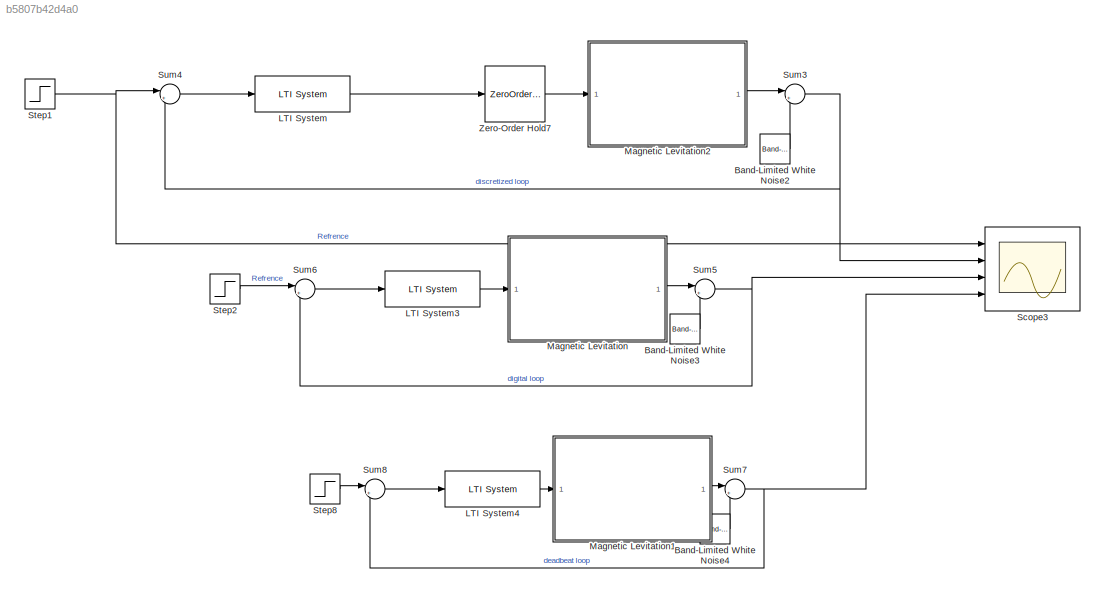
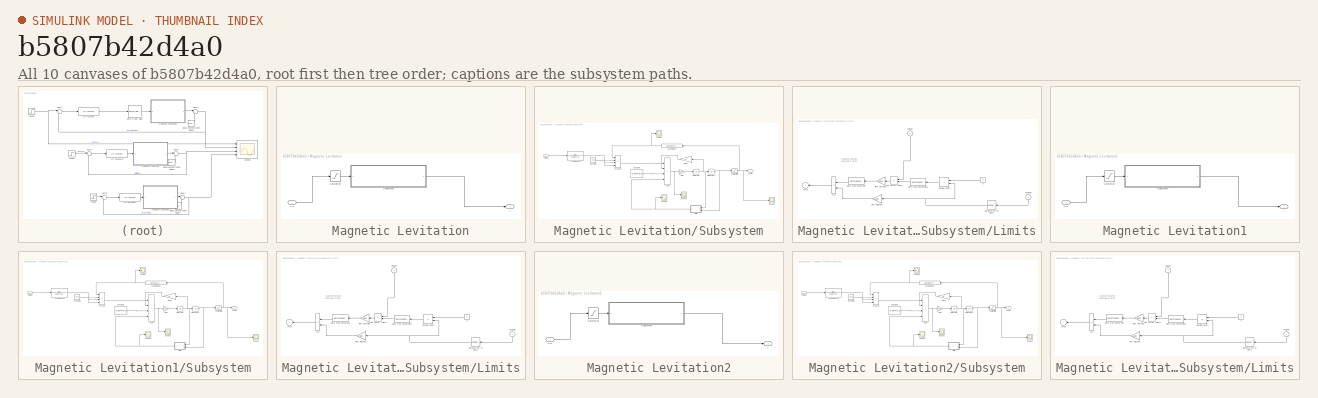
[diagram: thumbnail index - all 10 canvases of the model, root first then tree order]
MODEL slx_b5807b42d4a0
KIND model
CONFIG AbsTol = auto
CONFIG EnableMultiTasking = off
CONFIG FixedStep = auto
CONFIG MaxStep = auto
CONFIG MinStep = auto
CONFIG RelTol = 1e-3
CONFIG SampleTimeConstraint = Unconstrained
CONFIG SolverName = VariableStepAuto
CONFIG StartTime = 0.0
CONFIG StopTime = 10
BLOCK [Reference] Band-Limited White Noise2  REF=simulink/Sources/Band-Limited
White Noise
  Ports = [0, 1]
  SourceBlock = simulink/Sources/Band-Limited\nWhite Noise
  SourceProductBaseCode = SL
  SourceType = Band-Limited White Noise.
BLOCK [Reference] Band-Limited White Noise3  REF=simulink/Sources/Band-Limited
White Noise
  Ports = [0, 1]
  SourceBlock = simulink/Sources/Band-Limited\nWhite Noise
  SourceProductBaseCode = SL
  SourceType = Band-Limited White Noise.
BLOCK [Reference] Band-Limited White Noise4  REF=simulink/Sources/Band-Limited
White Noise
  Ports = [0, 1]
  SourceBlock = simulink/Sources/Band-Limited\nWhite Noise
  SourceProductBaseCode = SL
  SourceType = Band-Limited White Noise.
BLOCK [Reference] LTI System  REF=cstblocks/LTI System
  Ports = [1, 1]
  SourceBlock = cstblocks/LTI System
  SourceProductBaseCode = CT
  SourceType = LTI Block
BLOCK [Reference] LTI System3  REF=cstblocks/LTI System
  Ports = [1, 1]
  SourceBlock = cstblocks/LTI System
  SourceProductBaseCode = CT
  SourceType = LTI Block
BLOCK [Reference] LTI System4  REF=cstblocks/LTI System
  Ports = [1, 1]
  SourceBlock = cstblocks/LTI System
  SourceProductBaseCode = CT
  SourceType = LTI Block
BLOCK [SubSystem] Magnetic Levitation
  Permissions = NoReadOrWrite
  Ports = [1, 1]
  RequestExecContextInheritance = off
BLOCK [Saturate] Magnetic Levitation/Saturation
  LowerLimit = -6
  UpperLimit = 10
  ZeroCross = off
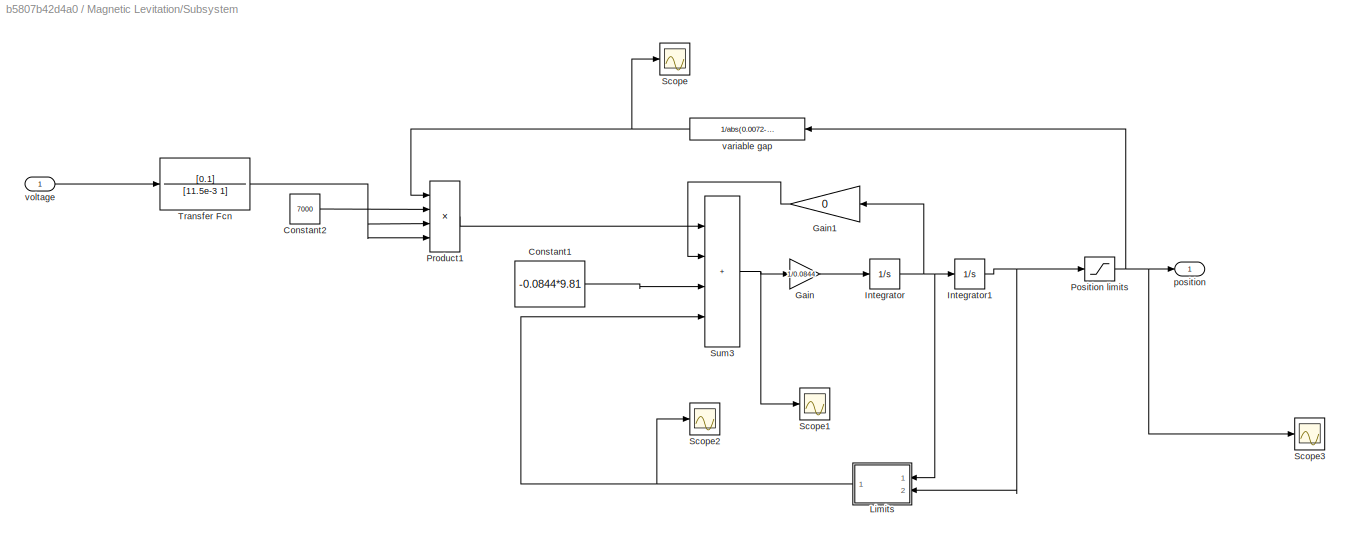
BLOCK [SubSystem] Magnetic Levitation/Subsystem
  Ports = [1, 1]
  RequestExecContextInheritance = off
BLOCK [Constant] Magnetic Levitation/Subsystem/Constant1
  Value = -0.0844*9.81
BLOCK [Constant] Magnetic Levitation/Subsystem/Constant2
  Value = 7000
BLOCK [Gain] Magnetic Levitation/Subsystem/Gain
  Gain = 1/0.0844
BLOCK [Gain] Magnetic Levitation/Subsystem/Gain1
  Gain = 0
  NameLocation = top
BLOCK [Integrator] Magnetic Levitation/Subsystem/Integrator
  Ports = [1, 1]
BLOCK [Integrator] Magnetic Levitation/Subsystem/Integrator1
  LimitOutput = on
  LowerSaturationLimit = 0
  Ports = [1, 1]
  UpperSaturationLimit = 0.005
BLOCK [SubSystem] Magnetic Levitation/Subsystem/Limits
  Ports = [2, 1]
  RequestExecContextInheritance = off
  ShowPortLabels = none
BLOCK [Constant] Magnetic Levitation/Subsystem/Limits/0
  Value = 0
BLOCK [DataTypeConversion] Magnetic Levitation/Subsystem/Limits/Data Type Conversion
  NameLocation = top
  OutDataTypeStr = double
  RndMeth = Floor
  SaturateOnIntegerOverflow = off
BLOCK [DataTypeConversion] Magnetic Levitation/Subsystem/Limits/Data Type Conversion1
  NameLocation = top
  OutDataTypeStr = double
  RndMeth = Floor
  SaturateOnIntegerOverflow = off
BLOCK [DeadZone] Magnetic Levitation/Subsystem/Limits/Distance out of limits
  LowerValue = 0.0002
  UpperValue = 5e-3
  ZeroCross = off
BLOCK [Sum] Magnetic Levitation/Subsystem/Limits/Fc1
  IconShape = rectangular
  InputSameDT = on
  Inputs = --
  OutDataTypeStr = Inherit: Same as first input
  Ports = [2, 1]
  SaturateOnIntegerOverflow = on
BLOCK [Product] Magnetic Levitation/Subsystem/Limits/Just on//off switch 
  InputSameDT = on
  OutDataTypeStr = Inherit: Same as first input
  Ports = [2, 1]
  SaturateOnIntegerOverflow = on
BLOCK [RelationalOperator] Magnetic Levitation/Subsystem/Limits/Outside Limits
  Operator = ~=
  Ports = [2, 1]
BLOCK [Outport] Magnetic Levitation/Subsystem/Limits/force
  VectorParamsAs1DForOutWhenUnconnected = off
BLOCK [Gain] Magnetic Levitation/Subsystem/Limits/limit damping
  Gain = 2800
  OutDataTypeStr = Inherit: Same as input
  ParamDataTypeStr = Inherit: Same as input
  SaturateOnIntegerOverflow = on
BLOCK [Gain] Magnetic Levitation/Subsystem/Limits/limit elasticity
  Gain = 500
  OutDataTypeStr = Inherit: Same as input
  ParamDataTypeStr = Inherit: Same as input
  SaturateOnIntegerOverflow = on
BLOCK [Inport] Magnetic Levitation/Subsystem/Limits/position
  NameLocation = right
  Port = 2
BLOCK [Inport] Magnetic Levitation/Subsystem/Limits/velocity
  NameLocation = right
BLOCK [Saturate] Magnetic Levitation/Subsystem/Position limits
  LowerLimit = 0.00001
  UpperLimit = 0.00499
  ZeroCross = off
BLOCK [Product] Magnetic Levitation/Subsystem/Product1
  Inputs = 4
  Ports = [4, 1]
BLOCK [Scope] Magnetic Levitation/Subsystem/Scope
  Floating = off
  NumInputPorts = 1
  Ports = [1]
  ScopeSpecificationString = Simulink.scopes.TimeScopeBlockCfg('CurrentConfiguration', extmgr.ConfigurationSet(extmgr.Configuration('Core','General UI',true),extmgr.Configuration('Core','Source UI',true),extmgr.Configuration('Sources','WiredSimulink',true,'DataLoggingVariableName','ScopeData1'),extmgr.Configuration('Visuals','Time Domain',true,'SerializedDisplays',{struct('MinYLimReal','-40.54054','MaxYLimReal','374.87487','Y...<+1381ch>  <repeated x3 — deduplicated; at blocks: Scope>
BLOCK [Scope] Magnetic Levitation/Subsystem/Scope1
  Floating = off
  NumInputPorts = 1
  Ports = [1]
  ScopeSpecificationString = Simulink.scopes.TimeScopeBlockCfg('CurrentConfiguration', extmgr.ConfigurationSet(extmgr.Configuration('Core','General UI',true),extmgr.Configuration('Core','Source UI',true),extmgr.Configuration('Sources','WiredSimulink',true,'DataLoggingVariableName','ScopeData2'),extmgr.Configuration('Visuals','Time Domain',true,'SerializedDisplays',{struct('MinYLimReal','-21376391083219120442781708779858395089...<+3841ch>  <repeated x3 — deduplicated; at blocks: Scope1>
BLOCK [Scope] Magnetic Levitation/Subsystem/Scope2
  Floating = off
  NumInputPorts = 1
  Ports = [1]
  ScopeSpecificationString = Simulink.scopes.TimeScopeBlockCfg('CurrentConfiguration', extmgr.ConfigurationSet(extmgr.Configuration('Core','General UI',true),extmgr.Configuration('Core','Source UI',true),extmgr.Configuration('Sources','WiredSimulink',true,'DataLoggingVariableName','ScopeData3'),extmgr.Configuration('Visuals','Time Domain',true,'SerializedDisplays',{struct('MinYLimReal','-0.1107','MaxYLimReal','1.19629','YLabe...<+1363ch>  <repeated x3 — deduplicated; at blocks: Scope2>
BLOCK [Scope] Magnetic Levitation/Subsystem/Scope3
  Floating = off
  NumInputPorts = 1
  Ports = [1]
  ScopeSpecificationString = Simulink.scopes.TimeScopeBlockCfg('CurrentConfiguration', extmgr.ConfigurationSet(extmgr.Configuration('Core','General UI',true),extmgr.Configuration('Core','Source UI',true),extmgr.Configuration('Sources','WiredSimulink',true,'DataLoggingVariableName','ScopeData2'),extmgr.Configuration('Visuals','Time Domain',true,'SerializedDisplays',{struct('MinYLimReal','-0.00029','MaxYLimReal','0.00267','YLab...<+1402ch>  <repeated x3 — deduplicated; at blocks: Scope3>
BLOCK [Sum] Magnetic Levitation/Subsystem/Sum3
  IconShape = rectangular
  Inputs = ++++
  Ports = [4, 1]
BLOCK [TransferFcn] Magnetic Levitation/Subsystem/Transfer Fcn
  Denominator = [11.5e-3 1]
  Numerator = [0.1]
BLOCK [Outport] Magnetic Levitation/Subsystem/position 
  VectorParamsAs1DForOutWhenUnconnected = off
BLOCK [Fcn] Magnetic Levitation/Subsystem/variable gap
  Expr = 1/abs(0.0072-u)
BLOCK [Inport] Magnetic Levitation/Subsystem/voltage
BLOCK [Inport] Magnetic Levitation/Vin
BLOCK [Outport] Magnetic Levitation/y
  VectorParamsAs1DForOutWhenUnconnected = off
BLOCK [SubSystem] Magnetic Levitation1
  Permissions = NoReadOrWrite
  Ports = [1, 1]
  RequestExecContextInheritance = off
BLOCK [Saturate] Magnetic Levitation1/Saturation
  LowerLimit = -6
  UpperLimit = 10
  ZeroCross = off
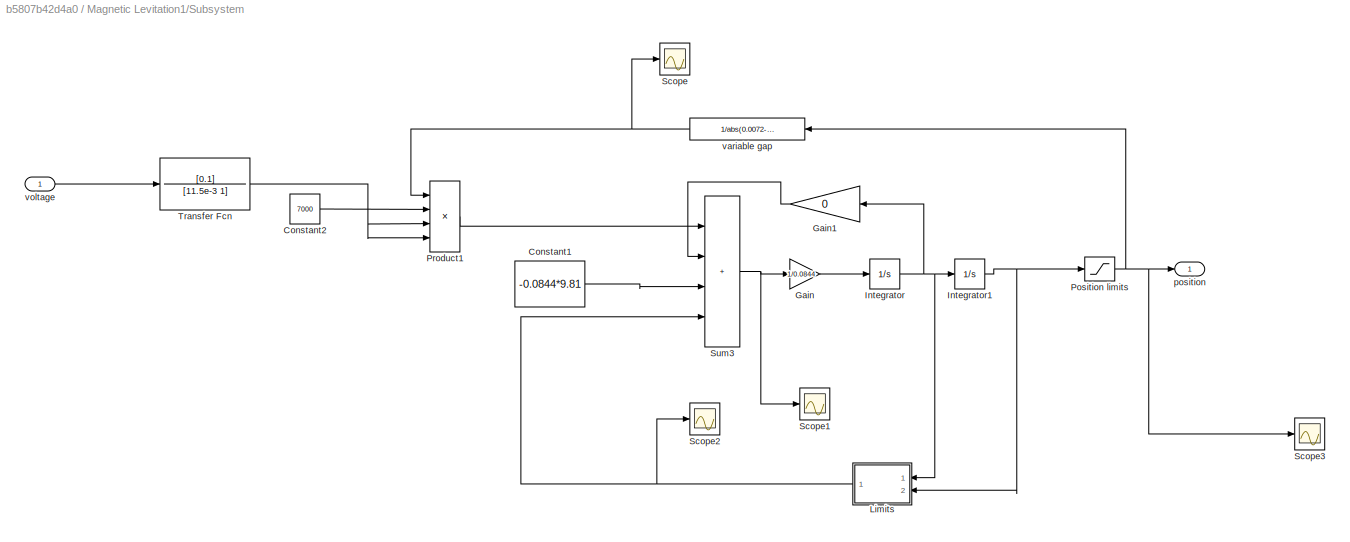
BLOCK [SubSystem] Magnetic Levitation1/Subsystem
  Ports = [1, 1]
  RequestExecContextInheritance = off
BLOCK [Constant] Magnetic Levitation1/Subsystem/Constant1
  Value = -0.0844*9.81
BLOCK [Constant] Magnetic Levitation1/Subsystem/Constant2
  Value = 7000
BLOCK [Gain] Magnetic Levitation1/Subsystem/Gain
  Gain = 1/0.0844
BLOCK [Gain] Magnetic Levitation1/Subsystem/Gain1
  Gain = 0
  NameLocation = top
BLOCK [Integrator] Magnetic Levitation1/Subsystem/Integrator
  Ports = [1, 1]
BLOCK [Integrator] Magnetic Levitation1/Subsystem/Integrator1
  LimitOutput = on
  LowerSaturationLimit = 0
  Ports = [1, 1]
  UpperSaturationLimit = 0.005
BLOCK [SubSystem] Magnetic Levitation1/Subsystem/Limits
  Ports = [2, 1]
  RequestExecContextInheritance = off
  ShowPortLabels = none
BLOCK [Constant] Magnetic Levitation1/Subsystem/Limits/0
  Value = 0
BLOCK [DataTypeConversion] Magnetic Levitation1/Subsystem/Limits/Data Type Conversion
  NameLocation = top
  OutDataTypeStr = double
  RndMeth = Floor
  SaturateOnIntegerOverflow = off
BLOCK [DataTypeConversion] Magnetic Levitation1/Subsystem/Limits/Data Type Conversion1
  NameLocation = top
  OutDataTypeStr = double
  RndMeth = Floor
  SaturateOnIntegerOverflow = off
BLOCK [DeadZone] Magnetic Levitation1/Subsystem/Limits/Distance out of limits
  LowerValue = 0.0002
  UpperValue = 5e-3
  ZeroCross = off
BLOCK [Sum] Magnetic Levitation1/Subsystem/Limits/Fc1
  IconShape = rectangular
  InputSameDT = on
  Inputs = --
  OutDataTypeStr = Inherit: Same as first input
  Ports = [2, 1]
  SaturateOnIntegerOverflow = on
BLOCK [Product] Magnetic Levitation1/Subsystem/Limits/Just on//off switch 
  InputSameDT = on
  OutDataTypeStr = Inherit: Same as first input
  Ports = [2, 1]
  SaturateOnIntegerOverflow = on
BLOCK [RelationalOperator] Magnetic Levitation1/Subsystem/Limits/Outside Limits
  Operator = ~=
  Ports = [2, 1]
BLOCK [Outport] Magnetic Levitation1/Subsystem/Limits/force
  VectorParamsAs1DForOutWhenUnconnected = off
BLOCK [Gain] Magnetic Levitation1/Subsystem/Limits/limit damping
  Gain = 2800
  OutDataTypeStr = Inherit: Same as input
  ParamDataTypeStr = Inherit: Same as input
  SaturateOnIntegerOverflow = on
BLOCK [Gain] Magnetic Levitation1/Subsystem/Limits/limit elasticity
  Gain = 500
  OutDataTypeStr = Inherit: Same as input
  ParamDataTypeStr = Inherit: Same as input
  SaturateOnIntegerOverflow = on
BLOCK [Inport] Magnetic Levitation1/Subsystem/Limits/position
  NameLocation = right
  Port = 2
BLOCK [Inport] Magnetic Levitation1/Subsystem/Limits/velocity
  NameLocation = right
BLOCK [Saturate] Magnetic Levitation1/Subsystem/Position limits
  LowerLimit = 0.00001
  UpperLimit = 0.00499
  ZeroCross = off
BLOCK [Product] Magnetic Levitation1/Subsystem/Product1
  Inputs = 4
  Ports = [4, 1]
BLOCK [Scope] Magnetic Levitation1/Subsystem/Scope
  Floating = off
  NumInputPorts = 1
  Ports = [1]
BLOCK [Scope] Magnetic Levitation1/Subsystem/Scope1
  Floating = off
  NumInputPorts = 1
  Ports = [1]
BLOCK [Scope] Magnetic Levitation1/Subsystem/Scope2
  Floating = off
  NumInputPorts = 1
  Ports = [1]
BLOCK [Scope] Magnetic Levitation1/Subsystem/Scope3
  Floating = off
  NumInputPorts = 1
  Ports = [1]
BLOCK [Sum] Magnetic Levitation1/Subsystem/Sum3
  IconShape = rectangular
  Inputs = ++++
  Ports = [4, 1]
BLOCK [TransferFcn] Magnetic Levitation1/Subsystem/Transfer Fcn
  Denominator = [11.5e-3 1]
  Numerator = [0.1]
BLOCK [Outport] Magnetic Levitation1/Subsystem/position 
  VectorParamsAs1DForOutWhenUnconnected = off
BLOCK [Fcn] Magnetic Levitation1/Subsystem/variable gap
  Expr = 1/abs(0.0072-u)
BLOCK [Inport] Magnetic Levitation1/Subsystem/voltage
BLOCK [Inport] Magnetic Levitation1/Vin
BLOCK [Outport] Magnetic Levitation1/y
  VectorParamsAs1DForOutWhenUnconnected = off
BLOCK [SubSystem] Magnetic Levitation2
  Permissions = NoReadOrWrite
  Ports = [1, 1]
  RequestExecContextInheritance = off
BLOCK [Saturate] Magnetic Levitation2/Saturation
  LowerLimit = -6
  UpperLimit = 10
  ZeroCross = off
BLOCK [SubSystem] Magnetic Levitation2/Subsystem
  Ports = [1, 1]
  RequestExecContextInheritance = off
BLOCK [Constant] Magnetic Levitation2/Subsystem/Constant1
  Value = -0.0844*9.81
BLOCK [Constant] Magnetic Levitation2/Subsystem/Constant2
  Value = 7000
BLOCK [Gain] Magnetic Levitation2/Subsystem/Gain
  Gain = 1/0.0844
BLOCK [Gain] Magnetic Levitation2/Subsystem/Gain1
  Gain = 0
  NameLocation = top
BLOCK [Integrator] Magnetic Levitation2/Subsystem/Integrator
  Ports = [1, 1]
BLOCK [Integrator] Magnetic Levitation2/Subsystem/Integrator1
  LimitOutput = on
  LowerSaturationLimit = 0
  Ports = [1, 1]
  UpperSaturationLimit = 0.005
BLOCK [SubSystem] Magnetic Levitation2/Subsystem/Limits
  Ports = [2, 1]
  RequestExecContextInheritance = off
  ShowPortLabels = none
BLOCK [Constant] Magnetic Levitation2/Subsystem/Limits/0
  Value = 0
BLOCK [DataTypeConversion] Magnetic Levitation2/Subsystem/Limits/Data Type Conversion
  NameLocation = top
  OutDataTypeStr = double
  RndMeth = Floor
  SaturateOnIntegerOverflow = off
BLOCK [DataTypeConversion] Magnetic Levitation2/Subsystem/Limits/Data Type Conversion1
  NameLocation = top
  OutDataTypeStr = double
  RndMeth = Floor
  SaturateOnIntegerOverflow = off
BLOCK [DeadZone] Magnetic Levitation2/Subsystem/Limits/Distance out of limits
  LowerValue = 0.0002
  UpperValue = 5e-3
  ZeroCross = off
BLOCK [Sum] Magnetic Levitation2/Subsystem/Limits/Fc1
  IconShape = rectangular
  InputSameDT = on
  Inputs = --
  OutDataTypeStr = Inherit: Same as first input
  Ports = [2, 1]
  SaturateOnIntegerOverflow = on
BLOCK [Product] Magnetic Levitation2/Subsystem/Limits/Just on//off switch 
  InputSameDT = on
  OutDataTypeStr = Inherit: Same as first input
  Ports = [2, 1]
  SaturateOnIntegerOverflow = on
BLOCK [RelationalOperator] Magnetic Levitation2/Subsystem/Limits/Outside Limits
  Operator = ~=
  Ports = [2, 1]
BLOCK [Outport] Magnetic Levitation2/Subsystem/Limits/force
  VectorParamsAs1DForOutWhenUnconnected = off
BLOCK [Gain] Magnetic Levitation2/Subsystem/Limits/limit damping
  Gain = 2800
  OutDataTypeStr = Inherit: Same as input
  ParamDataTypeStr = Inherit: Same as input
  SaturateOnIntegerOverflow = on
BLOCK [Gain] Magnetic Levitation2/Subsystem/Limits/limit elasticity
  Gain = 500
  OutDataTypeStr = Inherit: Same as input
  ParamDataTypeStr = Inherit: Same as input
  SaturateOnIntegerOverflow = on
BLOCK [Inport] Magnetic Levitation2/Subsystem/Limits/position
  NameLocation = right
  Port = 2
BLOCK [Inport] Magnetic Levitation2/Subsystem/Limits/velocity
  NameLocation = right
BLOCK [Saturate] Magnetic Levitation2/Subsystem/Position limits
  LowerLimit = 0.00001
  UpperLimit = 0.00499
  ZeroCross = off
BLOCK [Product] Magnetic Levitation2/Subsystem/Product1
  Inputs = 4
  Ports = [4, 1]
BLOCK [Scope] Magnetic Levitation2/Subsystem/Scope
  Floating = off
  NumInputPorts = 1
  Ports = [1]
BLOCK [Scope] Magnetic Levitation2/Subsystem/Scope1
  Floating = off
  NumInputPorts = 1
  Ports = [1]
BLOCK [Scope] Magnetic Levitation2/Subsystem/Scope2
  Floating = off
  NumInputPorts = 1
  Ports = [1]
BLOCK [Scope] Magnetic Levitation2/Subsystem/Scope3
  Floating = off
  NumInputPorts = 1
  Ports = [1]
BLOCK [Sum] Magnetic Levitation2/Subsystem/Sum3
  IconShape = rectangular
  Inputs = ++++
  Ports = [4, 1]
BLOCK [TransferFcn] Magnetic Levitation2/Subsystem/Transfer Fcn
  Denominator = [11.5e-3 1]
  Numerator = [0.1]
BLOCK [Outport] Magnetic Levitation2/Subsystem/position 
  VectorParamsAs1DForOutWhenUnconnected = off
BLOCK [Fcn] Magnetic Levitation2/Subsystem/variable gap
  Expr = 1/abs(0.0072-u)
BLOCK [Inport] Magnetic Levitation2/Subsystem/voltage
BLOCK [Inport] Magnetic Levitation2/Vin
BLOCK [Outport] Magnetic Levitation2/y
  VectorParamsAs1DForOutWhenUnconnected = off
BLOCK [Scope] Scope3
  Floating = off
  NumInputPorts = 4
  Ports = [4]
  ScopeSpecificationString = Simulink.scopes.TimeScopeBlockCfg('CurrentConfiguration', extmgr.ConfigurationSet(extmgr.Configuration('Core','General UI',true),extmgr.Configuration('Core','Source UI',true),extmgr.Configuration('Sources','WiredSimulink',true,'DataLoggingVariableName','ScopeData2'),extmgr.Configuration('Visuals','Time Domain',true,'SerializedDisplays',{struct('MinYLimReal','-0.53418','MaxYLimReal','1.17046','YLab...<+1533ch>
BLOCK [Step] Step1
  SampleTime = 0
BLOCK [Step] Step2
  SampleTime = 0.0001
  Time = 0
BLOCK [Step] Step8
  SampleTime = 0
  Time = 0
BLOCK [Sum] Sum3
  Inputs = |++
  Ports = [2, 1]
BLOCK [Sum] Sum4
  Inputs = |+-
  Ports = [2, 1]
BLOCK [Sum] Sum5
  Inputs = |++
  Ports = [2, 1]
BLOCK [Sum] Sum6
  Inputs = |+-
  Ports = [2, 1]
BLOCK [Sum] Sum7
  Inputs = |++
  Ports = [2, 1]
BLOCK [Sum] Sum8
  Inputs = |+-
  Ports = [2, 1]
BLOCK [ZeroOrderHold] Zero-Order Hold7
  SampleTime = Ts(2)
ANNOTATION Magnetic Levitation/Subsystem/Limits: Magnetic levitation submodel of limits
ANNOTATION Magnetic Levitation1/Subsystem/Limits: Magnetic levitation submodel of limits
ANNOTATION Magnetic Levitation2/Subsystem/Limits: Magnetic levitation submodel of limits
LINE Band-Limited White Noise2:1 -> Sum3:2
LINE Band-Limited White Noise3:1 -> Sum5:2
LINE Band-Limited White Noise4:1 -> Sum7:2
LINE LTI System3:1 -> Magnetic Levitation:1
LINE LTI System4:1 -> Magnetic Levitation1:1
LINE LTI System:1 -> Zero-Order Hold7:1
LINE Magnetic Levitation/Saturation:1 -> Magnetic Levitation/Subsystem:1
LINE Magnetic Levitation/Subsystem/Constant1:1 -> Magnetic Levitation/Subsystem/Sum3:3
LINE Magnetic Levitation/Subsystem/Constant2:1 -> Magnetic Levitation/Subsystem/Product1:2
LINE Magnetic Levitation/Subsystem/Gain1:1 -> Magnetic Levitation/Subsystem/Sum3:2
LINE Magnetic Levitation/Subsystem/Gain:1 -> Magnetic Levitation/Subsystem/Integrator:1
NET Magnetic Levitation/Subsystem/Integrator1:1 -> Magnetic Levitation/Subsystem/Limits:2, Magnetic Levitation/Subsystem/Position limits:1
NET Magnetic Levitation/Subsystem/Integrator:1 -> Magnetic Levitation/Subsystem/Gain1:1, Magnetic Levitation/Subsystem/Integrator1:1, Magnetic Levitation/Subsystem/Limits:1
LINE Magnetic Levitation/Subsystem/Limits/0:1 -> Magnetic Levitation/Subsystem/Limits/Outside Limits:1
LINE Magnetic Levitation/Subsystem/Limits/Data Type Conversion1:1 -> Magnetic Levitation/Subsystem/Limits/Just on//off switch :2
LINE Magnetic Levitation/Subsystem/Limits/Data Type Conversion:1 -> Magnetic Levitation/Subsystem/Limits/Fc1:1
NET Magnetic Levitation/Subsystem/Limits/Distance out of limits:1 -> Magnetic Levitation/Subsystem/Limits/Outside Limits:2, Magnetic Levitation/Subsystem/Limits/limit elasticity:1
LINE Magnetic Levitation/Subsystem/Limits/Fc1:1 -> Magnetic Levitation/Subsystem/Limits/force:1
LINE Magnetic Levitation/Subsystem/Limits/Just on//off switch :1 -> Magnetic Levitation/Subsystem/Limits/limit damping:1
LINE Magnetic Levitation/Subsystem/Limits/Outside Limits:1 -> Magnetic Levitation/Subsystem/Limits/Data Type Conversion1:1
LINE Magnetic Levitation/Subsystem/Limits/limit damping:1 -> Magnetic Levitation/Subsystem/Limits/Data Type Conversion:1
LINE Magnetic Levitation/Subsystem/Limits/limit elasticity:1 -> Magnetic Levitation/Subsystem/Limits/Fc1:2
LINE Magnetic Levitation/Subsystem/Limits/position:1 -> Magnetic Levitation/Subsystem/Limits/Distance out of limits:1
LINE Magnetic Levitation/Subsystem/Limits/velocity:1 -> Magnetic Levitation/Subsystem/Limits/Just on//off switch :1
NET Magnetic Levitation/Subsystem/Limits:1 -> Magnetic Levitation/Subsystem/Scope2:1, Magnetic Levitation/Subsystem/Sum3:4
NET Magnetic Levitation/Subsystem/Position limits:1 -> Magnetic Levitation/Subsystem/Scope3:1, Magnetic Levitation/Subsystem/position :1, Magnetic Levitation/Subsystem/variable gap:1
LINE Magnetic Levitation/Subsystem/Product1:1 -> Magnetic Levitation/Subsystem/Sum3:1
NET Magnetic Levitation/Subsystem/Sum3:1 -> Magnetic Levitation/Subsystem/Gain:1, Magnetic Levitation/Subsystem/Scope1:1
NET Magnetic Levitation/Subsystem/Transfer Fcn:1 -> Magnetic Levitation/Subsystem/Product1:3, Magnetic Levitation/Subsystem/Product1:4
NET Magnetic Levitation/Subsystem/variable gap:1 -> Magnetic Levitation/Subsystem/Product1:1, Magnetic Levitation/Subsystem/Scope:1
LINE Magnetic Levitation/Subsystem/voltage:1 -> Magnetic Levitation/Subsystem/Transfer Fcn:1
LINE Magnetic Levitation/Subsystem:1 -> Magnetic Levitation/y:1
LINE Magnetic Levitation/Vin:1 -> Magnetic Levitation/Saturation:1
LINE Magnetic Levitation1/Saturation:1 -> Magnetic Levitation1/Subsystem:1
LINE Magnetic Levitation1/Subsystem/Constant1:1 -> Magnetic Levitation1/Subsystem/Sum3:3
LINE Magnetic Levitation1/Subsystem/Constant2:1 -> Magnetic Levitation1/Subsystem/Product1:2
LINE Magnetic Levitation1/Subsystem/Gain1:1 -> Magnetic Levitation1/Subsystem/Sum3:2
LINE Magnetic Levitation1/Subsystem/Gain:1 -> Magnetic Levitation1/Subsystem/Integrator:1
NET Magnetic Levitation1/Subsystem/Integrator1:1 -> Magnetic Levitation1/Subsystem/Limits:2, Magnetic Levitation1/Subsystem/Position limits:1
NET Magnetic Levitation1/Subsystem/Integrator:1 -> Magnetic Levitation1/Subsystem/Gain1:1, Magnetic Levitation1/Subsystem/Integrator1:1, Magnetic Levitation1/Subsystem/Limits:1
LINE Magnetic Levitation1/Subsystem/Limits/0:1 -> Magnetic Levitation1/Subsystem/Limits/Outside Limits:1
LINE Magnetic Levitation1/Subsystem/Limits/Data Type Conversion1:1 -> Magnetic Levitation1/Subsystem/Limits/Just on//off switch :2
LINE Magnetic Levitation1/Subsystem/Limits/Data Type Conversion:1 -> Magnetic Levitation1/Subsystem/Limits/Fc1:1
NET Magnetic Levitation1/Subsystem/Limits/Distance out of limits:1 -> Magnetic Levitation1/Subsystem/Limits/Outside Limits:2, Magnetic Levitation1/Subsystem/Limits/limit elasticity:1
LINE Magnetic Levitation1/Subsystem/Limits/Fc1:1 -> Magnetic Levitation1/Subsystem/Limits/force:1
LINE Magnetic Levitation1/Subsystem/Limits/Just on//off switch :1 -> Magnetic Levitation1/Subsystem/Limits/limit damping:1
LINE Magnetic Levitation1/Subsystem/Limits/Outside Limits:1 -> Magnetic Levitation1/Subsystem/Limits/Data Type Conversion1:1
LINE Magnetic Levitation1/Subsystem/Limits/limit damping:1 -> Magnetic Levitation1/Subsystem/Limits/Data Type Conversion:1
LINE Magnetic Levitation1/Subsystem/Limits/limit elasticity:1 -> Magnetic Levitation1/Subsystem/Limits/Fc1:2
LINE Magnetic Levitation1/Subsystem/Limits/position:1 -> Magnetic Levitation1/Subsystem/Limits/Distance out of limits:1
LINE Magnetic Levitation1/Subsystem/Limits/velocity:1 -> Magnetic Levitation1/Subsystem/Limits/Just on//off switch :1
NET Magnetic Levitation1/Subsystem/Limits:1 -> Magnetic Levitation1/Subsystem/Scope2:1, Magnetic Levitation1/Subsystem/Sum3:4
NET Magnetic Levitation1/Subsystem/Position limits:1 -> Magnetic Levitation1/Subsystem/Scope3:1, Magnetic Levitation1/Subsystem/position :1, Magnetic Levitation1/Subsystem/variable gap:1
LINE Magnetic Levitation1/Subsystem/Product1:1 -> Magnetic Levitation1/Subsystem/Sum3:1
NET Magnetic Levitation1/Subsystem/Sum3:1 -> Magnetic Levitation1/Subsystem/Gain:1, Magnetic Levitation1/Subsystem/Scope1:1
NET Magnetic Levitation1/Subsystem/Transfer Fcn:1 -> Magnetic Levitation1/Subsystem/Product1:3, Magnetic Levitation1/Subsystem/Product1:4
NET Magnetic Levitation1/Subsystem/variable gap:1 -> Magnetic Levitation1/Subsystem/Product1:1, Magnetic Levitation1/Subsystem/Scope:1
LINE Magnetic Levitation1/Subsystem/voltage:1 -> Magnetic Levitation1/Subsystem/Transfer Fcn:1
LINE Magnetic Levitation1/Subsystem:1 -> Magnetic Levitation1/y:1
LINE Magnetic Levitation1/Vin:1 -> Magnetic Levitation1/Saturation:1
LINE Magnetic Levitation1:1 -> Sum7:1
LINE Magnetic Levitation2/Saturation:1 -> Magnetic Levitation2/Subsystem:1
LINE Magnetic Levitation2/Subsystem/Constant1:1 -> Magnetic Levitation2/Subsystem/Sum3:3
LINE Magnetic Levitation2/Subsystem/Constant2:1 -> Magnetic Levitation2/Subsystem/Product1:2
LINE Magnetic Levitation2/Subsystem/Gain1:1 -> Magnetic Levitation2/Subsystem/Sum3:2
LINE Magnetic Levitation2/Subsystem/Gain:1 -> Magnetic Levitation2/Subsystem/Integrator:1
NET Magnetic Levitation2/Subsystem/Integrator1:1 -> Magnetic Levitation2/Subsystem/Limits:2, Magnetic Levitation2/Subsystem/Position limits:1
NET Magnetic Levitation2/Subsystem/Integrator:1 -> Magnetic Levitation2/Subsystem/Gain1:1, Magnetic Levitation2/Subsystem/Integrator1:1, Magnetic Levitation2/Subsystem/Limits:1
LINE Magnetic Levitation2/Subsystem/Limits/0:1 -> Magnetic Levitation2/Subsystem/Limits/Outside Limits:1
LINE Magnetic Levitation2/Subsystem/Limits/Data Type Conversion1:1 -> Magnetic Levitation2/Subsystem/Limits/Just on//off switch :2
LINE Magnetic Levitation2/Subsystem/Limits/Data Type Conversion:1 -> Magnetic Levitation2/Subsystem/Limits/Fc1:1
NET Magnetic Levitation2/Subsystem/Limits/Distance out of limits:1 -> Magnetic Levitation2/Subsystem/Limits/Outside Limits:2, Magnetic Levitation2/Subsystem/Limits/limit elasticity:1
LINE Magnetic Levitation2/Subsystem/Limits/Fc1:1 -> Magnetic Levitation2/Subsystem/Limits/force:1
LINE Magnetic Levitation2/Subsystem/Limits/Just on//off switch :1 -> Magnetic Levitation2/Subsystem/Limits/limit damping:1
LINE Magnetic Levitation2/Subsystem/Limits/Outside Limits:1 -> Magnetic Levitation2/Subsystem/Limits/Data Type Conversion1:1
LINE Magnetic Levitation2/Subsystem/Limits/limit damping:1 -> Magnetic Levitation2/Subsystem/Limits/Data Type Conversion:1
LINE Magnetic Levitation2/Subsystem/Limits/limit elasticity:1 -> Magnetic Levitation2/Subsystem/Limits/Fc1:2
LINE Magnetic Levitation2/Subsystem/Limits/position:1 -> Magnetic Levitation2/Subsystem/Limits/Distance out of limits:1
LINE Magnetic Levitation2/Subsystem/Limits/velocity:1 -> Magnetic Levitation2/Subsystem/Limits/Just on//off switch :1
NET Magnetic Levitation2/Subsystem/Limits:1 -> Magnetic Levitation2/Subsystem/Scope2:1, Magnetic Levitation2/Subsystem/Sum3:4
NET Magnetic Levitation2/Subsystem/Position limits:1 -> Magnetic Levitation2/Subsystem/Scope3:1, Magnetic Levitation2/Subsystem/position :1, Magnetic Levitation2/Subsystem/variable gap:1
LINE Magnetic Levitation2/Subsystem/Product1:1 -> Magnetic Levitation2/Subsystem/Sum3:1
NET Magnetic Levitation2/Subsystem/Sum3:1 -> Magnetic Levitation2/Subsystem/Gain:1, Magnetic Levitation2/Subsystem/Scope1:1
NET Magnetic Levitation2/Subsystem/Transfer Fcn:1 -> Magnetic Levitation2/Subsystem/Product1:3, Magnetic Levitation2/Subsystem/Product1:4
NET Magnetic Levitation2/Subsystem/variable gap:1 -> Magnetic Levitation2/Subsystem/Product1:1, Magnetic Levitation2/Subsystem/Scope:1
LINE Magnetic Levitation2/Subsystem/voltage:1 -> Magnetic Levitation2/Subsystem/Transfer Fcn:1
LINE Magnetic Levitation2/Subsystem:1 -> Magnetic Levitation2/y:1
LINE Magnetic Levitation2/Vin:1 -> Magnetic Levitation2/Saturation:1
LINE Magnetic Levitation2:1 -> Sum3:1
LINE Magnetic Levitation:1 -> Sum5:1
NET Step1:1 -> Scope3:1, Sum4:1
LINE Step2:1 -> Sum6:1
LINE Step8:1 -> Sum8:1
NET Sum3:1 -> Scope3:2, Sum4:2
LINE Sum4:1 -> LTI System:1
NET Sum5:1 -> Scope3:3, Sum6:2
LINE Sum6:1 -> LTI System3:1
NET Sum7:1 -> Scope3:4, Sum8:2
LINE Sum8:1 -> LTI System4:1
LINE Zero-Order Hold7:1 -> Magnetic Levitation2:1
note: NET lines group one-source signal fan-out (src -> all destinations, sorted); 1:1 wires keep LINE
